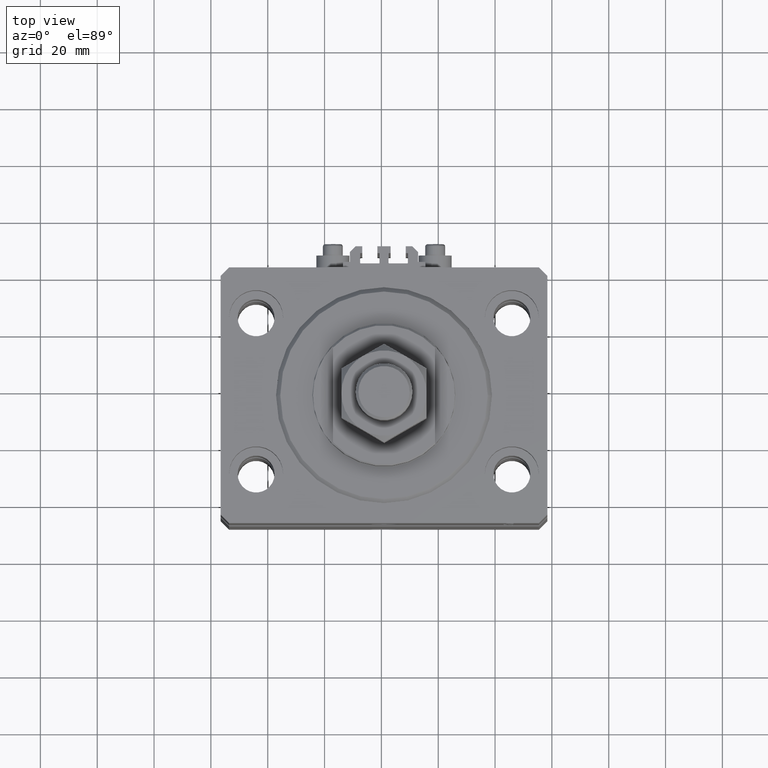
[diagram: clean part render]
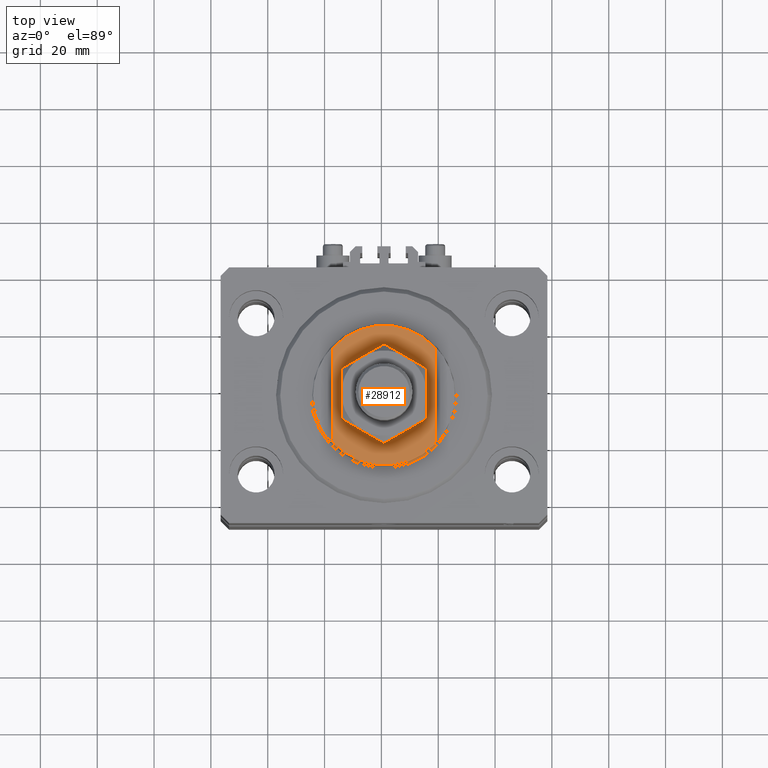
[diagram: same view with one face highlighted and labeled with its STEP entity id]
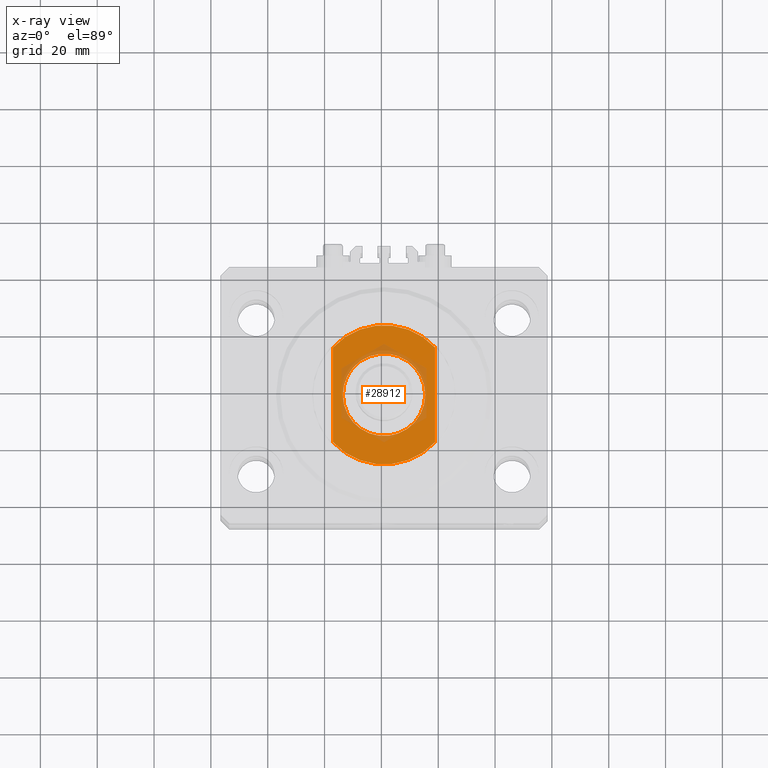
[diagram: x-ray of the same camera — body ghosted, the highlighted face saturated]
A machine part, top view. The second image highlights one B-rep face of the part: STEP entity #28912.
The next image is the same camera in x-ray: the body ghosted, the highlighted face saturated — about 14% of this face is hidden behind the body in this view.
In plain terms, the highlighted planar face has unit normal (0, 0, 1).
Its self-contained STEP definition (entity closure, byte-faithful):
#574 = LINE ( 'NONE', #12248, #32980 ) ;
#1936 = ORIENTED_EDGE ( 'NONE', *, *, #47899, .T. ) ;
#2237 = AXIS2_PLACEMENT_3D ( 'NONE', #45866, #37959, #26018 ) ;
#3942 = CIRCLE ( 'NONE', #25802, 24.49999999999996803 ) ;
#3997 = ORIENTED_EDGE ( 'NONE', *, *, #12879, .T. ) ;
#4941 = FACE_BOUND ( 'NONE', #15260, .T. ) ;
#5316 = EDGE_CURVE ( 'NONE', #42008, #44985, #26776, .T. ) ;
#5531 = CARTESIAN_POINT ( 'NONE',  ( 18.00000000000000000, 16.62077013859462227, -7.000000000000000000 ) ) ;
#5924 = VERTEX_POINT ( 'NONE', #41174 ) ;
#6714 = DIRECTION ( 'NONE',  ( 0.000000000000000000, 0.000000000000000000, -1.000000000000000000 ) ) ;
#8197 = DIRECTION ( 'NONE',  ( -0.000000000000000000, -1.000000000000000000, -0.000000000000000000 ) ) ;
#8862 = ORIENTED_EDGE ( 'NONE', *, *, #5316, .T. ) ;
#9793 = ORIENTED_EDGE ( 'NONE', *, *, #22119, .F. ) ;
#11913 = CIRCLE ( 'NONE', #2237, 14.49999999999999822 ) ;
#12248 = CARTESIAN_POINT ( 'NONE',  ( 18.00000000000000000, -41.24318125460256113, -7.000000000000000000 ) ) ;
#12270 = DIRECTION ( 'NONE',  ( -1.000000000000000000, 0.000000000000000000, 0.000000000000000000 ) ) ;
#12879 = EDGE_CURVE ( 'NONE', #15074, #5924, #574, .T. ) ;
#13751 = AXIS2_PLACEMENT_3D ( 'NONE', #27731, #23905, #39408 ) ;
#13931 = CARTESIAN_POINT ( 'NONE',  ( -14.49999999999999822, 0.000000000000000000, -7.000000000000000000 ) ) ;
#15074 = VERTEX_POINT ( 'NONE', #5531 ) ;
#15260 = EDGE_LOOP ( 'NONE', ( #38695, #8862 ) ) ;
#15364 = VECTOR ( 'NONE', #8197, 1000.000000000000000 ) ;
#15813 = CARTESIAN_POINT ( 'NONE',  ( -18.00000000000000000, -41.24318125460256113, -7.000000000000000000 ) ) ;
#15837 = DIRECTION ( 'NONE',  ( 0.000000000000000000, 0.000000000000000000, -1.000000000000000000 ) ) ;
#17850 = AXIS2_PLACEMENT_3D ( 'NONE', #21697, #20932, #32858 ) ;
#20171 = VERTEX_POINT ( 'NONE', #42371 ) ;
#20406 = PLANE ( 'NONE',  #25993 ) ;
#20651 = CARTESIAN_POINT ( 'NONE',  ( 0.000000000000000000, 0.000000000000000000, -7.000000000000000000 ) ) ;
#20932 = DIRECTION ( 'NONE',  ( -0.000000000000000000, -0.000000000000000000, 1.000000000000000000 ) ) ;
#21697 = CARTESIAN_POINT ( 'NONE',  ( 0.000000000000000000, 0.000000000000000000, -7.000000000000000000 ) ) ;
#22119 = EDGE_CURVE ( 'NONE', #20171, #30448, #23176, .T. ) ;
#22805 = EDGE_CURVE ( 'NONE', #5924, #30448, #41317, .T. ) ;
#23176 = LINE ( 'NONE', #15813, #15364 ) ;
#23384 = CARTESIAN_POINT ( 'NONE',  ( 14.49999999999999822, 1.775737858763662015E-15, -7.000000000000000000 ) ) ;
#23905 = DIRECTION ( 'NONE',  ( 0.000000000000000000, 0.000000000000000000, -1.000000000000000000 ) ) ;
#25802 = AXIS2_PLACEMENT_3D ( 'NONE', #31559, #15837, #12270 ) ;
#25993 = AXIS2_PLACEMENT_3D ( 'NONE', #20651, #6714, #48893 ) ;
#26018 = DIRECTION ( 'NONE',  ( -1.000000000000000000, 0.000000000000000000, 0.000000000000000000 ) ) ;
#26776 = CIRCLE ( 'NONE', #17850, 14.49999999999999822 ) ;
#27731 = CARTESIAN_POINT ( 'NONE',  ( 0.000000000000000000, 0.000000000000000000, -7.000000000000000000 ) ) ;
#27732 = DIRECTION ( 'NONE',  ( 0.000000000000000000, -1.000000000000000000, -0.000000000000000000 ) ) ;
#28912 = ADVANCED_FACE ( 'NONE', ( #4941, #39973 ), #20406, .T. ) ;
#30448 = VERTEX_POINT ( 'NONE', #47490 ) ;
#31559 = CARTESIAN_POINT ( 'NONE',  ( 0.000000000000000000, 0.000000000000000000, -7.000000000000000000 ) ) ;
#32858 = DIRECTION ( 'NONE',  ( -1.000000000000000000, 0.000000000000000000, 0.000000000000000000 ) ) ;
#32980 = VECTOR ( 'NONE', #27732, 1000.000000000000000 ) ;
#33362 = EDGE_LOOP ( 'NONE', ( #1936, #3997, #40682, #9793 ) ) ;
#37959 = DIRECTION ( 'NONE',  ( -0.000000000000000000, -0.000000000000000000, 1.000000000000000000 ) ) ;
#38695 = ORIENTED_EDGE ( 'NONE', *, *, #40838, .T. ) ;
#39408 = DIRECTION ( 'NONE',  ( -1.000000000000000000, 0.000000000000000000, 0.000000000000000000 ) ) ;
#39973 = FACE_OUTER_BOUND ( 'NONE', #33362, .T. ) ;
#40682 = ORIENTED_EDGE ( 'NONE', *, *, #22805, .T. ) ;
#40838 = EDGE_CURVE ( 'NONE', #44985, #42008, #11913, .T. ) ;
#41174 = CARTESIAN_POINT ( 'NONE',  ( 18.00000000000000000, -16.62077013859462227, -7.000000000000000000 ) ) ;
#41317 = CIRCLE ( 'NONE', #13751, 24.49999999999996803 ) ;
#42008 = VERTEX_POINT ( 'NONE', #23384 ) ;
#42371 = CARTESIAN_POINT ( 'NONE',  ( -18.00000000000000000, 16.62077013859462227, -7.000000000000000000 ) ) ;
#44985 = VERTEX_POINT ( 'NONE', #13931 ) ;
#45866 = CARTESIAN_POINT ( 'NONE',  ( 0.000000000000000000, 0.000000000000000000, -7.000000000000000000 ) ) ;
#47490 = CARTESIAN_POINT ( 'NONE',  ( -18.00000000000000000, -16.62077013859462227, -7.000000000000000000 ) ) ;
#47899 = EDGE_CURVE ( 'NONE', #20171, #15074, #3942, .T. ) ;
#48893 = DIRECTION ( 'NONE',  ( -1.000000000000000000, 0.000000000000000000, -0.000000000000000000 ) ) ;